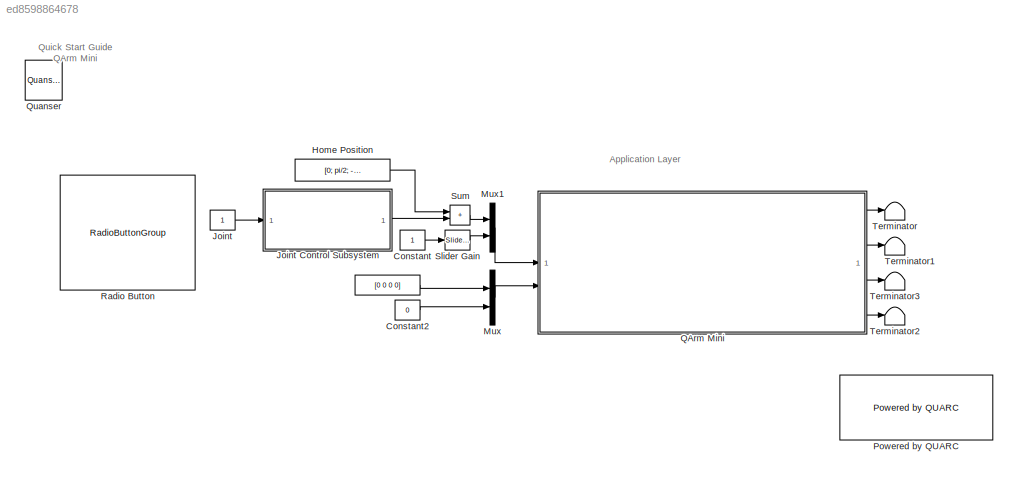
MODEL slx_ed8598864678
KIND model
CONFIG AbsTol = auto
CONFIG EnableMultiTasking = on
CONFIG FixedStep = 1/30
CONFIG MaxStep = auto
CONFIG MinStep = auto
CONFIG RelTol = 1e-3
CONFIG SampleTimeConstraint = Unconstrained
CONFIG SolverName = ode2
CONFIG StartTime = 0.0
CONFIG StopTime = inf
BLOCK [Constant]  
  NameLocation = top
  Value = [0 0 0 0]
BLOCK [Constant] Constant
BLOCK [Constant] Constant2
  Value = 0
BLOCK [Constant] Home Position
  NameLocation = top
  Value = [0; pi/2; -pi/2; pi/2]
  VectorParams1D = off
BLOCK [Constant] Joint
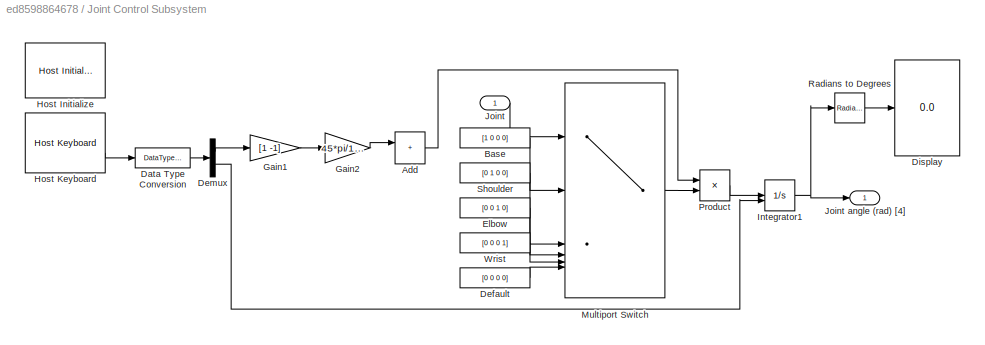
BLOCK [SubSystem] Joint Control Subsystem
BLOCK [Sum] Joint Control Subsystem/Add
  IconShape = rectangular
  Inputs = 1
  NameLocation = right
BLOCK [Constant] Joint Control Subsystem/Base
  Value = [1 0 0 0]
BLOCK [DataTypeConversion] Joint Control Subsystem/Data Type Conversion
  RndMeth = Floor
  SaturateOnIntegerOverflow = off
BLOCK [Constant] Joint Control Subsystem/Default
  Value = [0 0 0 0]
BLOCK [Demux] Joint Control Subsystem/Demux
  Outputs = 2
BLOCK [Display] Joint Control Subsystem/Display
  Decimation = 1
BLOCK [Constant] Joint Control Subsystem/Elbow
  Value = [0 0 1 0]
BLOCK [Gain] Joint Control Subsystem/Gain1
  Gain = [1 -1]
BLOCK [Gain] Joint Control Subsystem/Gain2
  Gain = 45*pi/180
BLOCK [Reference] Joint Control Subsystem/Host Initialize  REF=quarc_library/Devices/Peripherals/Host/Host Initialize
  SourceBlock = quarc_library/Devices/Peripherals/Host/Host Initialize
  SourceProductName = QUARC Targets
  SourceType = Host Initialize
BLOCK [Reference] Joint Control Subsystem/Host Keyboard  REF=quarc_library/Devices/Peripherals/Host/Host Keyboard
  SourceBlock = quarc_library/Devices/Peripherals/Host/Host Keyboard
  SourceProductName = QUARC Targets
  SourceType = Host Keyboard
BLOCK [Integrator] Joint Control Subsystem/Integrator1
  ExternalReset = rising
  LimitOutput = on
  LowerSaturationLimit = [-pi/2. -pi/2, -pi/4, -pi/2]
  UpperSaturationLimit = [5*pi/4, pi/2, pi/2, pi/4]
BLOCK [Inport] Joint Control Subsystem/Joint
BLOCK [Outport] Joint Control Subsystem/Joint angle (rad) [4]
BLOCK [MultiPortSwitch] Joint Control Subsystem/Multiport Switch
  DiagnosticForDefault = Warning
  InputSameDT = off
  Inputs = 5
  SaturateOnIntegerOverflow = off
BLOCK [Product] Joint Control Subsystem/Product
BLOCK [Reference] Joint Control Subsystem/Radians to Degrees  REF=simulink_extras/Transformations/Radians
to Degrees
  SourceBlock = simulink_extras/Transformations/Radians\nto Degrees
  SourceType = RadiansToDegrees
BLOCK [Constant] Joint Control Subsystem/Shoulder
  Value = [0 1 0 0]
BLOCK [Constant] Joint Control Subsystem/Wrist
  Value = [0 0 0 1]
BLOCK [Mux] Mux
  DisplayOption = bar
  Inputs = 2
BLOCK [Mux] Mux1
  DisplayOption = bar
  Inputs = 2
BLOCK [Reference] Powered by QUARC  REF=quarc_library/Logos/Powered by QUARC
  SourceBlock = quarc_library/Logos/Powered by QUARC
  SourceProductName = QUARC Targets
  SourceType = Powered by QUARC
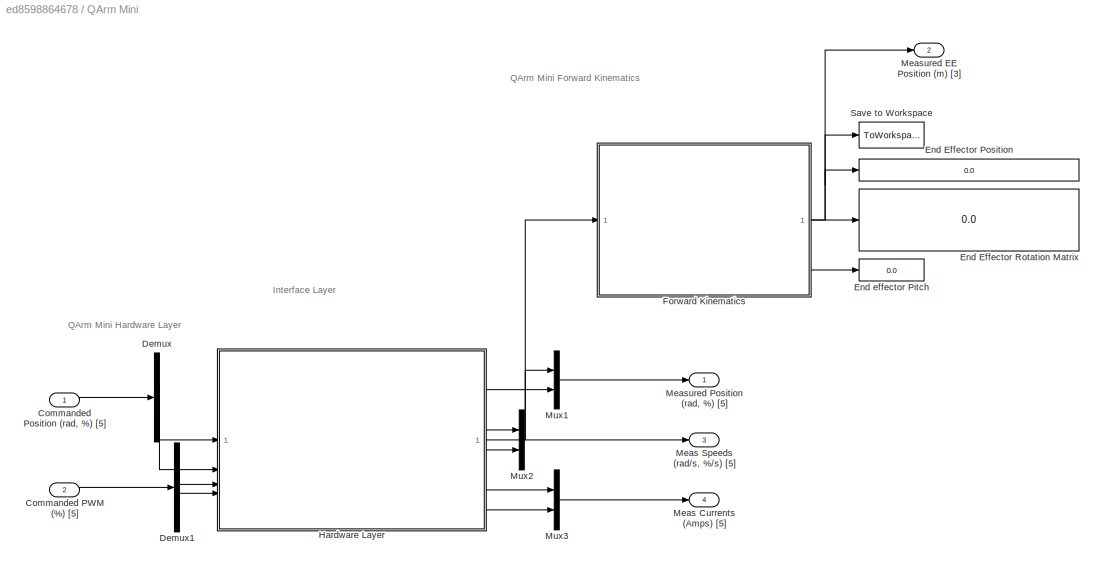
BLOCK [SubSystem] QArm Mini
BLOCK [Inport] QArm Mini/Commanded PWM (%) [5]
  Port = 2
BLOCK [Inport] QArm Mini/Commanded Position (rad, %) [5]
BLOCK [Demux] QArm Mini/Demux
  Outputs = [4 1]
BLOCK [Demux] QArm Mini/Demux1
  Outputs = [4 1]
BLOCK [Display] QArm Mini/End Effector Position
  NameLocation = right
BLOCK [Display] QArm Mini/End Effector Rotation Matrix
  NameLocation = right
BLOCK [Display] QArm Mini/End effector Pitch
  NameLocation = right
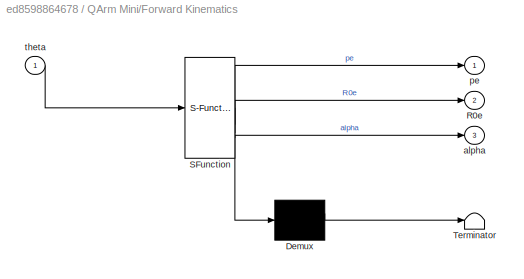
BLOCK [SubSystem] QArm Mini/Forward Kinematics
  ErrorFcn = Stateflow.Translate.translate
  PermitHierarchicalResolution = ExplicitOnly
  SFBlockType = MATLAB Function
  TreatAsAtomicUnit = on
BLOCK [Demux] QArm Mini/Forward Kinematics/ Demux 
  Outputs = 1
BLOCK [S-Function] QArm Mini/Forward Kinematics/ SFunction 
  EnableBusSupport = on
  FunctionName = sf_sfun
  PortCounts = [1 4]
  SFcnIsStateOwnerBlock = off
  SFunctionDeploymentMode = off
  Tag = Stateflow S-Function 2
BLOCK [Terminator] QArm Mini/Forward Kinematics/ Terminator 
BLOCK [Outport] QArm Mini/Forward Kinematics/R0e
  Port = 2
BLOCK [Outport] QArm Mini/Forward Kinematics/alpha
  Port = 3
BLOCK [Outport] QArm Mini/Forward Kinematics/pe
BLOCK [Inport] QArm Mini/Forward Kinematics/theta
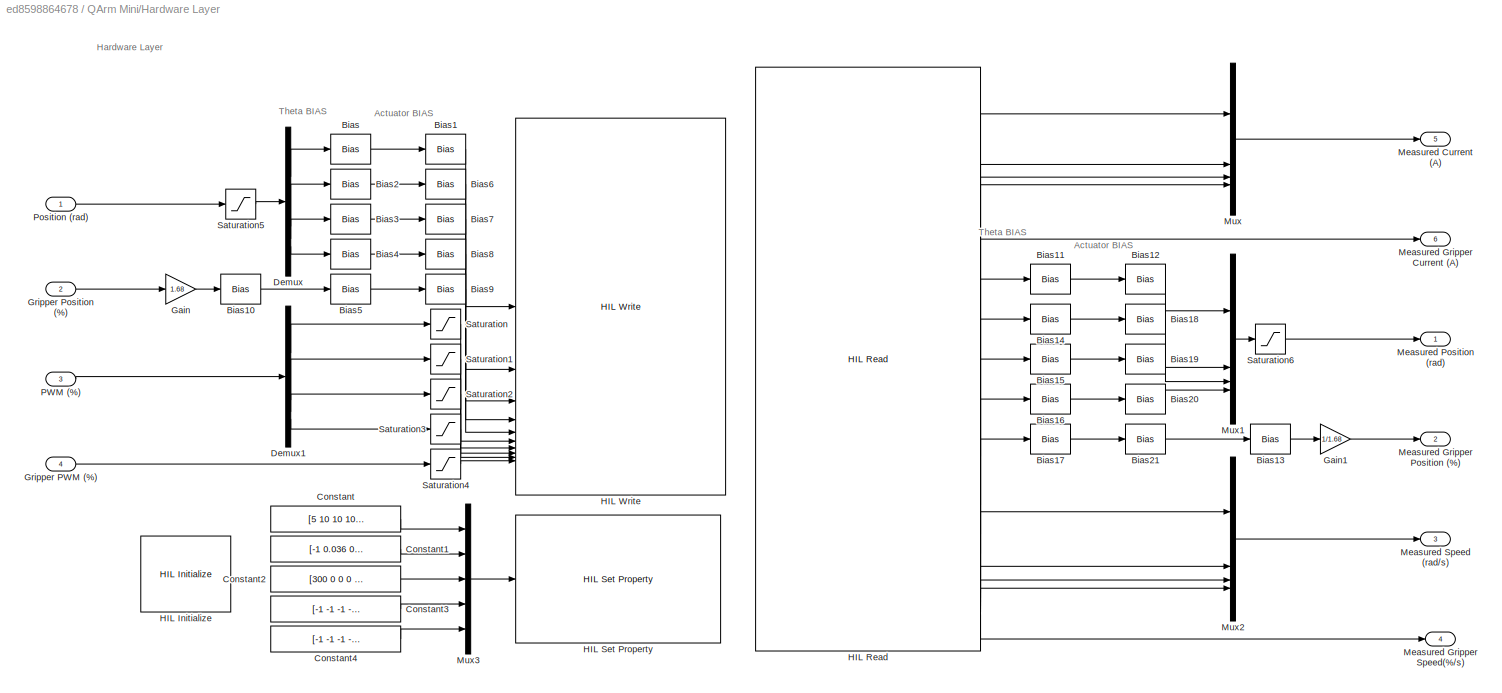
BLOCK [SubSystem] QArm Mini/Hardware Layer
BLOCK [Bias] QArm Mini/Hardware Layer/Bias
  SaturateOnIntegerOverflow = off
BLOCK [Bias] QArm Mini/Hardware Layer/Bias1
  Bias = pi - ((67.5)*(pi/180))
  SaturateOnIntegerOverflow = off
BLOCK [Bias] QArm Mini/Hardware Layer/Bias10
  Bias = -0.9
  SaturateOnIntegerOverflow = off
BLOCK [Bias] QArm Mini/Hardware Layer/Bias11
  SaturateOnIntegerOverflow = off
BLOCK [Bias] QArm Mini/Hardware Layer/Bias12
  Bias = -(pi - ((67.5)*(pi/180)))
  SaturateOnIntegerOverflow = off
BLOCK [Bias] QArm Mini/Hardware Layer/Bias13
  Bias = 0.9
  SaturateOnIntegerOverflow = off
BLOCK [Bias] QArm Mini/Hardware Layer/Bias14
  Bias = pi/2
  SaturateOnIntegerOverflow = off
BLOCK [Bias] QArm Mini/Hardware Layer/Bias15
  Bias = -pi/2
  SaturateOnIntegerOverflow = off
BLOCK [Bias] QArm Mini/Hardware Layer/Bias16
  Bias = pi/2
  SaturateOnIntegerOverflow = off
BLOCK [Bias] QArm Mini/Hardware Layer/Bias17
  SaturateOnIntegerOverflow = off
BLOCK [Bias] QArm Mini/Hardware Layer/Bias18
  Bias = -pi -  0.1834
  SaturateOnIntegerOverflow = off
BLOCK [Bias] QArm Mini/Hardware Layer/Bias19
  Bias = -pi +  0.1834
  SaturateOnIntegerOverflow = off
BLOCK [Bias] QArm Mini/Hardware Layer/Bias2
  Bias = -pi/2
  SaturateOnIntegerOverflow = off
BLOCK [Bias] QArm Mini/Hardware Layer/Bias20
  Bias = -pi
  SaturateOnIntegerOverflow = off
BLOCK [Bias] QArm Mini/Hardware Layer/Bias21
  Bias = -pi
  SaturateOnIntegerOverflow = off
BLOCK [Bias] QArm Mini/Hardware Layer/Bias3
  Bias = pi/2
  SaturateOnIntegerOverflow = off
BLOCK [Bias] QArm Mini/Hardware Layer/Bias4
  Bias = -pi/2
  SaturateOnIntegerOverflow = off
BLOCK [Bias] QArm Mini/Hardware Layer/Bias5
  SaturateOnIntegerOverflow = off
BLOCK [Bias] QArm Mini/Hardware Layer/Bias6
  Bias = pi + 0.1834
  SaturateOnIntegerOverflow = off
BLOCK [Bias] QArm Mini/Hardware Layer/Bias7
  Bias = pi -  0.1834
  SaturateOnIntegerOverflow = off
BLOCK [Bias] QArm Mini/Hardware Layer/Bias8
  Bias = pi
  SaturateOnIntegerOverflow = off
BLOCK [Bias] QArm Mini/Hardware Layer/Bias9
  Bias = pi
  SaturateOnIntegerOverflow = off
BLOCK [Constant] QArm Mini/Hardware Layer/Constant
  Value = [5 10 10 10 20]
BLOCK [Constant] QArm Mini/Hardware Layer/Constant1
  Value = [-1 0.036 0.036 -1 -1]
BLOCK [Constant] QArm Mini/Hardware Layer/Constant2
  Value = [300 0 0 0 0]
BLOCK [Constant] QArm Mini/Hardware Layer/Constant3
  Value = [-1 -1 -1 -1 -1]
BLOCK [Constant] QArm Mini/Hardware Layer/Constant4
  Value = [-1 -1 -1 -1 -1]
BLOCK [Demux] QArm Mini/Hardware Layer/Demux
BLOCK [Demux] QArm Mini/Hardware Layer/Demux1
BLOCK [Gain] QArm Mini/Hardware Layer/Gain
  Gain = 1.68
BLOCK [Gain] QArm Mini/Hardware Layer/Gain1
  Gain = 1/1.68
BLOCK [Inport] QArm Mini/Hardware Layer/Gripper PWM (%)
  Port = 4
BLOCK [Inport] QArm Mini/Hardware Layer/Gripper Position (%)
  Port = 2
BLOCK [Reference] QArm Mini/Hardware Layer/HIL Initialize   REF=quarc_library/Data Acquisition/Generic/Configuration/HIL Initialize
  AttributesFormatString = %<object_name> (%<board_type>-%<board_number>)
  SourceBlock = quarc_library/Data Acquisition/Generic/Configuration/HIL Initialize
  SourceProductName = QUARC Targets
  SourceType = HIL Initialize
  UserDataPersistent = on
BLOCK [Reference] QArm Mini/Hardware Layer/HIL Read  REF=quarc_library/Data Acquisition/Generic/Immediate I//O/HIL Read
  AttributesFormatString = (%<object_name>)
  SourceBlock = quarc_library/Data Acquisition/Generic/Immediate I//O/HIL Read
  SourceProductName = QUARC Targets
  SourceType = HIL Read
  UserDataPersistent = on
BLOCK [Reference] QArm Mini/Hardware Layer/HIL Set Property  REF=quarc_library/Data Acquisition/Generic/Configuration/HIL Set Property
  AttributesFormatString = (%<object_name>)
  SourceBlock = quarc_library/Data Acquisition/Generic/Configuration/HIL Set Property
  SourceProductName = QUARC Targets
  SourceType = HIL Set Property
  UserDataPersistent = on
BLOCK [Reference] QArm Mini/Hardware Layer/HIL Write  REF=quarc_library/Data Acquisition/Generic/Immediate I//O/HIL Write
  AttributesFormatString = (%<object_name>)
  NameLocation = top
  SourceBlock = quarc_library/Data Acquisition/Generic/Immediate I//O/HIL Write
  SourceProductName = QUARC Targets
  SourceType = HIL Write
  UserDataPersistent = on
BLOCK [Outport] QArm Mini/Hardware Layer/Measured Current (A)
  Port = 5
BLOCK [Outport] QArm Mini/Hardware Layer/Measured Gripper Current (A)
  Port = 6
BLOCK [Outport] QArm Mini/Hardware Layer/Measured Gripper Position (%)
  Port = 2
BLOCK [Outport] QArm Mini/Hardware Layer/Measured Gripper Speed(%//s)
  Port = 4
BLOCK [Outport] QArm Mini/Hardware Layer/Measured Position (rad)
BLOCK [Outport] QArm Mini/Hardware Layer/Measured Speed (rad//s)
  Port = 3
BLOCK [Mux] QArm Mini/Hardware Layer/Mux
  DisplayOption = bar
BLOCK [Mux] QArm Mini/Hardware Layer/Mux1
  DisplayOption = bar
BLOCK [Mux] QArm Mini/Hardware Layer/Mux2
  DisplayOption = bar
BLOCK [Mux] QArm Mini/Hardware Layer/Mux3
  DisplayOption = bar
  Inputs = 5
BLOCK [Inport] QArm Mini/Hardware Layer/PWM (%)
  Port = 3
BLOCK [Inport] QArm Mini/Hardware Layer/Position (rad)
BLOCK [Saturate] QArm Mini/Hardware Layer/Saturation
BLOCK [Saturate] QArm Mini/Hardware Layer/Saturation1
BLOCK [Saturate] QArm Mini/Hardware Layer/Saturation2
BLOCK [Saturate] QArm Mini/Hardware Layer/Saturation3
BLOCK [Saturate] QArm Mini/Hardware Layer/Saturation4
BLOCK [Saturate] QArm Mini/Hardware Layer/Saturation5
  LowerLimit = [-pi/2. 0, -3*pi/4, 0]'
  UpperLimit = [5*pi/4, pi, 0, 3*pi/4]'
BLOCK [Saturate] QArm Mini/Hardware Layer/Saturation6
  LowerLimit = [-pi/2. 0, -3*pi/4, 0]'
  UpperLimit = [5*pi/4, pi, 0, 3*pi/4]'
BLOCK [Outport] QArm Mini/Meas Currents (Amps) [5]
  Port = 4
BLOCK [Outport] QArm Mini/Meas Speeds (rad//s, %//s) [5]
  Port = 3
BLOCK [Outport] QArm Mini/Measured EE Position (m) [3]
  Port = 2
BLOCK [Outport] QArm Mini/Measured Position (rad, %) [5]
BLOCK [Mux] QArm Mini/Mux1
  DisplayOption = bar
  Inputs = 2
BLOCK [Mux] QArm Mini/Mux2
  DisplayOption = bar
  Inputs = 2
BLOCK [Mux] QArm Mini/Mux3
  DisplayOption = bar
  Inputs = 2
BLOCK [ToWorkspace] QArm Mini/Save to Workspace
  FixptAsFi = on
  MaxDataPoints = inf
  NameLocation = right
  SampleTime = -1
  SaveFormat = Structure With Time
  VariableName = ee_pos
BLOCK [Reference] Quanser  REF=quarc_library/Logos/Quanser
  SourceBlock = quarc_library/Logos/Quanser
  SourceProductName = QUARC Targets
  SourceType = Powered by Quanser
BLOCK [RadioButtonGroup] Radio Button
  ButtonGroupName = Joint Selector
  SelectedLabel = Base Joint
BLOCK [Reference] Slider Gain   REF=simulink/Math
Operations/Slider
Gain
  SourceBlock = simulink/Math\nOperations/Slider\nGain
  SourceType = Slider Gain
BLOCK [Sum] Sum
  IconShape = rectangular
BLOCK [Terminator] Terminator
BLOCK [Terminator] Terminator1
BLOCK [Terminator] Terminator2
BLOCK [Terminator] Terminator3
ANNOTATION (root): Application Layer
ANNOTATION (root): Quick Start Guide QArm Mini
ANNOTATION QArm Mini: Interface Layer
ANNOTATION QArm Mini: QArm Mini Forward Kinematics
ANNOTATION QArm Mini: QArm Mini Hardware Layer
ANNOTATION QArm Mini/Hardware Layer: Hardware Layer
ANNOTATION QArm Mini/Hardware Layer: Actuator BIAS
ANNOTATION QArm Mini/Hardware Layer: Theta BIAS
LINE  :1 -> Mux:1
LINE Constant2:1 -> Mux:2
LINE Constant:1 -> Slider Gain :1
LINE Home Position:1 -> Sum:1
LINE Joint Control Subsystem/Add:1 -> Joint Control Subsystem/Product:1
LINE Joint Control Subsystem/Base:1 -> Joint Control Subsystem/Multiport Switch:2
LINE Joint Control Subsystem/Data Type Conversion:1 -> Joint Control Subsystem/Demux:1
LINE Joint Control Subsystem/Default:1 -> Joint Control Subsystem/Multiport Switch:6
LINE Joint Control Subsystem/Demux:1 -> Joint Control Subsystem/Gain1:1
LINE Joint Control Subsystem/Demux:2 -> Joint Control Subsystem/Integrator1:2
LINE Joint Control Subsystem/Elbow:1 -> Joint Control Subsystem/Multiport Switch:4
LINE Joint Control Subsystem/Gain1:1 -> Joint Control Subsystem/Gain2:1
LINE Joint Control Subsystem/Gain2:1 -> Joint Control Subsystem/Add:1
LINE Joint Control Subsystem/Host Keyboard:2 -> Joint Control Subsystem/Data Type Conversion:1
NET Joint Control Subsystem/Integrator1:1 -> Joint Control Subsystem/Joint angle (rad) [4]:1, Joint Control Subsystem/Radians to Degrees:1
LINE Joint Control Subsystem/Joint:1 -> Joint Control Subsystem/Multiport Switch:1
LINE Joint Control Subsystem/Multiport Switch:1 -> Joint Control Subsystem/Product:2
LINE Joint Control Subsystem/Product:1 -> Joint Control Subsystem/Integrator1:1
LINE Joint Control Subsystem/Radians to Degrees:1 -> Joint Control Subsystem/Display:1
LINE Joint Control Subsystem/Shoulder:1 -> Joint Control Subsystem/Multiport Switch:3
LINE Joint Control Subsystem/Wrist:1 -> Joint Control Subsystem/Multiport Switch:5
LINE Joint Control Subsystem:1 -> Sum:2
LINE Joint:1 -> Joint Control Subsystem:1
LINE Mux1:1 -> QArm Mini:1
LINE Mux:1 -> QArm Mini:2
LINE QArm Mini/Commanded PWM (%) [5]:1 -> QArm Mini/Demux1:1
LINE QArm Mini/Commanded Position (rad, %) [5]:1 -> QArm Mini/Demux:1
LINE QArm Mini/Demux1:1 -> QArm Mini/Hardware Layer:3
LINE QArm Mini/Demux1:2 -> QArm Mini/Hardware Layer:4
LINE QArm Mini/Demux:1 -> QArm Mini/Hardware Layer:1
LINE QArm Mini/Demux:2 -> QArm Mini/Hardware Layer:2
NET QArm Mini/Forward Kinematics:1 -> QArm Mini/End Effector Position:1, QArm Mini/Measured EE Position (m) [3]:1, QArm Mini/Save to Workspace:1
LINE QArm Mini/Forward Kinematics:2 -> QArm Mini/End Effector Rotation Matrix:1
LINE QArm Mini/Forward Kinematics:3 -> QArm Mini/End effector Pitch:1
LINE QArm Mini/Hardware Layer/Bias10:1 -> QArm Mini/Hardware Layer/Bias5:1
LINE QArm Mini/Hardware Layer/Bias11:1 -> QArm Mini/Hardware Layer/Bias12:1
LINE QArm Mini/Hardware Layer/Bias12:1 -> QArm Mini/Hardware Layer/Mux1:1
LINE QArm Mini/Hardware Layer/Bias13:1 -> QArm Mini/Hardware Layer/Gain1:1
LINE QArm Mini/Hardware Layer/Bias14:1 -> QArm Mini/Hardware Layer/Bias18:1
LINE QArm Mini/Hardware Layer/Bias15:1 -> QArm Mini/Hardware Layer/Bias19:1
LINE QArm Mini/Hardware Layer/Bias16:1 -> QArm Mini/Hardware Layer/Bias20:1
LINE QArm Mini/Hardware Layer/Bias17:1 -> QArm Mini/Hardware Layer/Bias21:1
LINE QArm Mini/Hardware Layer/Bias18:1 -> QArm Mini/Hardware Layer/Mux1:2
LINE QArm Mini/Hardware Layer/Bias19:1 -> QArm Mini/Hardware Layer/Mux1:3
LINE QArm Mini/Hardware Layer/Bias1:1 -> QArm Mini/Hardware Layer/HIL Write:1
LINE QArm Mini/Hardware Layer/Bias20:1 -> QArm Mini/Hardware Layer/Mux1:4
LINE QArm Mini/Hardware Layer/Bias21:1 -> QArm Mini/Hardware Layer/Bias13:1
LINE QArm Mini/Hardware Layer/Bias2:1 -> QArm Mini/Hardware Layer/Bias6:1
LINE QArm Mini/Hardware Layer/Bias3:1 -> QArm Mini/Hardware Layer/Bias7:1
LINE QArm Mini/Hardware Layer/Bias4:1 -> QArm Mini/Hardware Layer/Bias8:1
LINE QArm Mini/Hardware Layer/Bias5:1 -> QArm Mini/Hardware Layer/Bias9:1
LINE QArm Mini/Hardware Layer/Bias6:1 -> QArm Mini/Hardware Layer/HIL Write:2
LINE QArm Mini/Hardware Layer/Bias7:1 -> QArm Mini/Hardware Layer/HIL Write:3
LINE QArm Mini/Hardware Layer/Bias8:1 -> QArm Mini/Hardware Layer/HIL Write:4
LINE QArm Mini/Hardware Layer/Bias9:1 -> QArm Mini/Hardware Layer/HIL Write:5
LINE QArm Mini/Hardware Layer/Bias:1 -> QArm Mini/Hardware Layer/Bias1:1
LINE QArm Mini/Hardware Layer/Constant1:1 -> QArm Mini/Hardware Layer/Mux3:2
LINE QArm Mini/Hardware Layer/Constant2:1 -> QArm Mini/Hardware Layer/Mux3:3
LINE QArm Mini/Hardware Layer/Constant3:1 -> QArm Mini/Hardware Layer/Mux3:4
LINE QArm Mini/Hardware Layer/Constant4:1 -> QArm Mini/Hardware Layer/Mux3:5
LINE QArm Mini/Hardware Layer/Constant:1 -> QArm Mini/Hardware Layer/Mux3:1
LINE QArm Mini/Hardware Layer/Demux1:1 -> QArm Mini/Hardware Layer/Saturation:1
LINE QArm Mini/Hardware Layer/Demux1:2 -> QArm Mini/Hardware Layer/Saturation1:1
LINE QArm Mini/Hardware Layer/Demux1:3 -> QArm Mini/Hardware Layer/Saturation2:1
LINE QArm Mini/Hardware Layer/Demux1:4 -> QArm Mini/Hardware Layer/Saturation3:1
LINE QArm Mini/Hardware Layer/Demux:1 -> QArm Mini/Hardware Layer/Bias:1
LINE QArm Mini/Hardware Layer/Demux:2 -> QArm Mini/Hardware Layer/Bias2:1
LINE QArm Mini/Hardware Layer/Demux:3 -> QArm Mini/Hardware Layer/Bias3:1
LINE QArm Mini/Hardware Layer/Demux:4 -> QArm Mini/Hardware Layer/Bias4:1
LINE QArm Mini/Hardware Layer/Gain1:1 -> QArm Mini/Hardware Layer/Measured Gripper Position (%):1
LINE QArm Mini/Hardware Layer/Gain:1 -> QArm Mini/Hardware Layer/Bias10:1
LINE QArm Mini/Hardware Layer/Gripper PWM (%):1 -> QArm Mini/Hardware Layer/Saturation4:1
LINE QArm Mini/Hardware Layer/Gripper Position (%):1 -> QArm Mini/Hardware Layer/Gain:1
LINE QArm Mini/Hardware Layer/HIL Read:1 -> QArm Mini/Hardware Layer/Mux:1
LINE QArm Mini/Hardware Layer/HIL Read:10 -> QArm Mini/Hardware Layer/Bias17:1
LINE QArm Mini/Hardware Layer/HIL Read:11 -> QArm Mini/Hardware Layer/Mux2:1
LINE QArm Mini/Hardware Layer/HIL Read:12 -> QArm Mini/Hardware Layer/Mux2:2
LINE QArm Mini/Hardware Layer/HIL Read:13 -> QArm Mini/Hardware Layer/Mux2:3
LINE QArm Mini/Hardware Layer/HIL Read:14 -> QArm Mini/Hardware Layer/Mux2:4
LINE QArm Mini/Hardware Layer/HIL Read:15 -> QArm Mini/Hardware Layer/Measured Gripper Speed(%//s):1
LINE QArm Mini/Hardware Layer/HIL Read:2 -> QArm Mini/Hardware Layer/Mux:2
LINE QArm Mini/Hardware Layer/HIL Read:3 -> QArm Mini/Hardware Layer/Mux:3
LINE QArm Mini/Hardware Layer/HIL Read:4 -> QArm Mini/Hardware Layer/Mux:4
LINE QArm Mini/Hardware Layer/HIL Read:5 -> QArm Mini/Hardware Layer/Measured Gripper Current (A):1
LINE QArm Mini/Hardware Layer/HIL Read:6 -> QArm Mini/Hardware Layer/Bias11:1
LINE QArm Mini/Hardware Layer/HIL Read:7 -> QArm Mini/Hardware Layer/Bias14:1
LINE QArm Mini/Hardware Layer/HIL Read:8 -> QArm Mini/Hardware Layer/Bias15:1
LINE QArm Mini/Hardware Layer/HIL Read:9 -> QArm Mini/Hardware Layer/Bias16:1
LINE QArm Mini/Hardware Layer/Mux1:1 -> QArm Mini/Hardware Layer/Saturation6:1
LINE QArm Mini/Hardware Layer/Mux2:1 -> QArm Mini/Hardware Layer/Measured Speed (rad//s):1
LINE QArm Mini/Hardware Layer/Mux3:1 -> QArm Mini/Hardware Layer/HIL Set Property:1
LINE QArm Mini/Hardware Layer/Mux:1 -> QArm Mini/Hardware Layer/Measured Current (A):1
LINE QArm Mini/Hardware Layer/PWM (%):1 -> QArm Mini/Hardware Layer/Demux1:1
LINE QArm Mini/Hardware Layer/Position (rad):1 -> QArm Mini/Hardware Layer/Saturation5:1
LINE QArm Mini/Hardware Layer/Saturation1:1 -> QArm Mini/Hardware Layer/HIL Write:7
LINE QArm Mini/Hardware Layer/Saturation2:1 -> QArm Mini/Hardware Layer/HIL Write:8
LINE QArm Mini/Hardware Layer/Saturation3:1 -> QArm Mini/Hardware Layer/HIL Write:9
LINE QArm Mini/Hardware Layer/Saturation4:1 -> QArm Mini/Hardware Layer/HIL Write:10
LINE QArm Mini/Hardware Layer/Saturation5:1 -> QArm Mini/Hardware Layer/Demux:1
LINE QArm Mini/Hardware Layer/Saturation6:1 -> QArm Mini/Hardware Layer/Measured Position (rad):1
LINE QArm Mini/Hardware Layer/Saturation:1 -> QArm Mini/Hardware Layer/HIL Write:6
NET QArm Mini/Hardware Layer:1 -> QArm Mini/Forward Kinematics:1, QArm Mini/Mux1:1
LINE QArm Mini/Hardware Layer:2 -> QArm Mini/Mux1:2
LINE QArm Mini/Hardware Layer:3 -> QArm Mini/Mux2:1
LINE QArm Mini/Hardware Layer:4 -> QArm Mini/Mux2:2
LINE QArm Mini/Hardware Layer:5 -> QArm Mini/Mux3:1
LINE QArm Mini/Hardware Layer:6 -> QArm Mini/Mux3:2
LINE QArm Mini/Mux1:1 -> QArm Mini/Measured Position (rad, %) [5]:1
LINE QArm Mini/Mux2:1 -> QArm Mini/Meas Speeds (rad//s, %//s) [5]:1
LINE QArm Mini/Mux3:1 -> QArm Mini/Meas Currents (Amps) [5]:1
LINE QArm Mini:1 -> Terminator:1
LINE QArm Mini:2 -> Terminator1:1
LINE QArm Mini:3 -> Terminator3:1
LINE QArm Mini:4 -> Terminator2:1
LINE Slider Gain :1 -> Mux1:2
LINE Sum:1 -> Mux1:1
note: NET lines group one-source signal fan-out (src -> all destinations, sorted); 1:1 wires keep LINE
CHART QArm Mini/Forward Kinematics states=1 transitions=1
  STATE_LABEL 'eML_blk_kernel()'
  STATE_LABEL 'SCRIPT:\nfunction [pe, R0e, alpha] = qArmMiniForwardKinematics(theta)\n\n%% QARM_MINI_FPK\n% v 1.0 - 30th March 2025\n\n% REFERENCE: \n% Chapter 3. Forward Kinematics\n% Robot Dynamics and Control \n% Spong, Vidyasagar\n% 1989\n\n% INPUTS:\n% theta   : Alternate joint angles vector 4 x 1\n\n% OUTPUTS:\n% pe      : End-effector frame {e} position vector expressed in base frame {0}\n% R0e     : rotation matrix from ...<+2449ch>'
CHART  states=0 transitions=0
